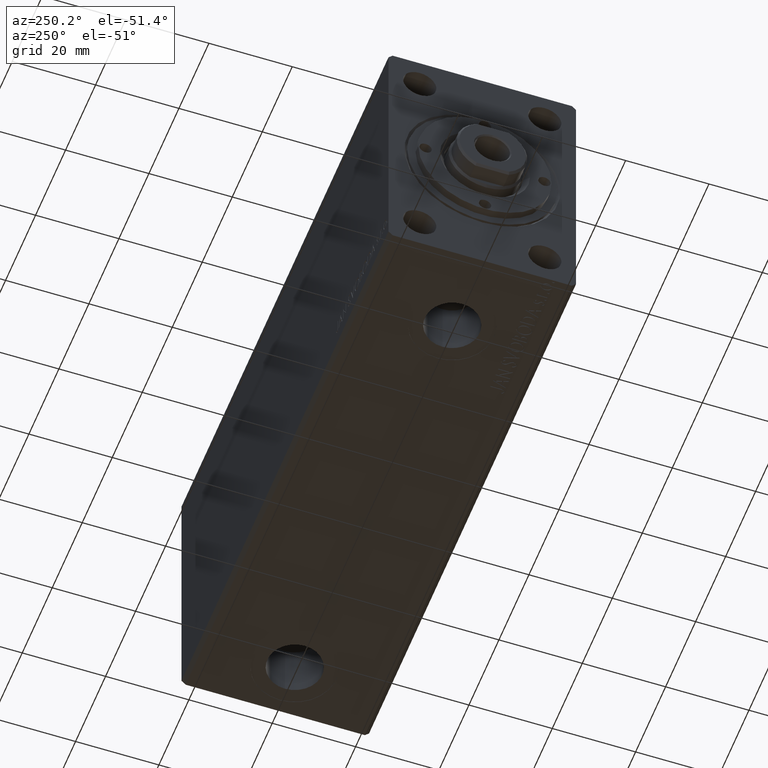
[diagram: clean part render]
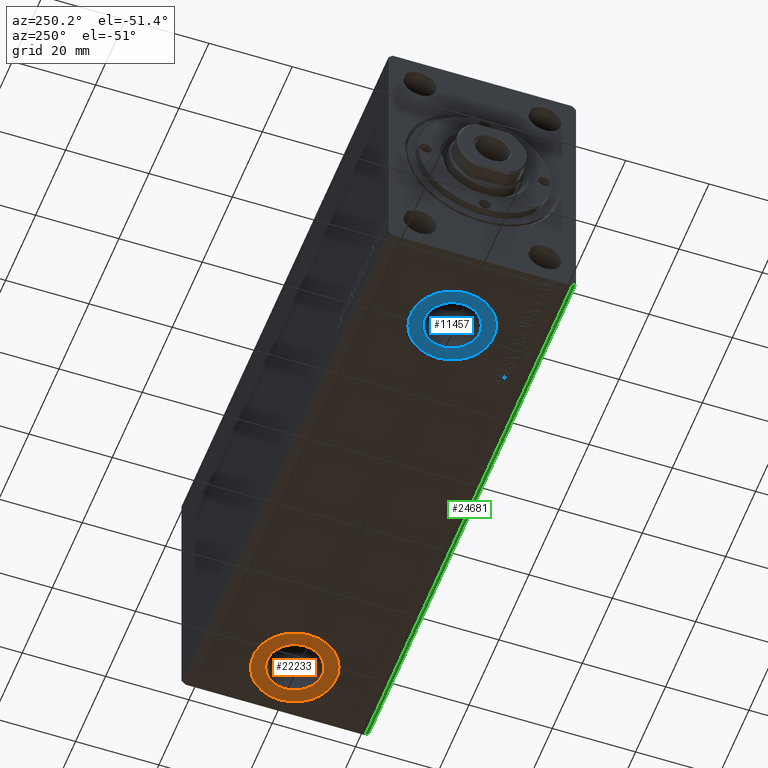
[diagram: same view with three faces highlighted in distinct colors, each labeled with its STEP entity id]
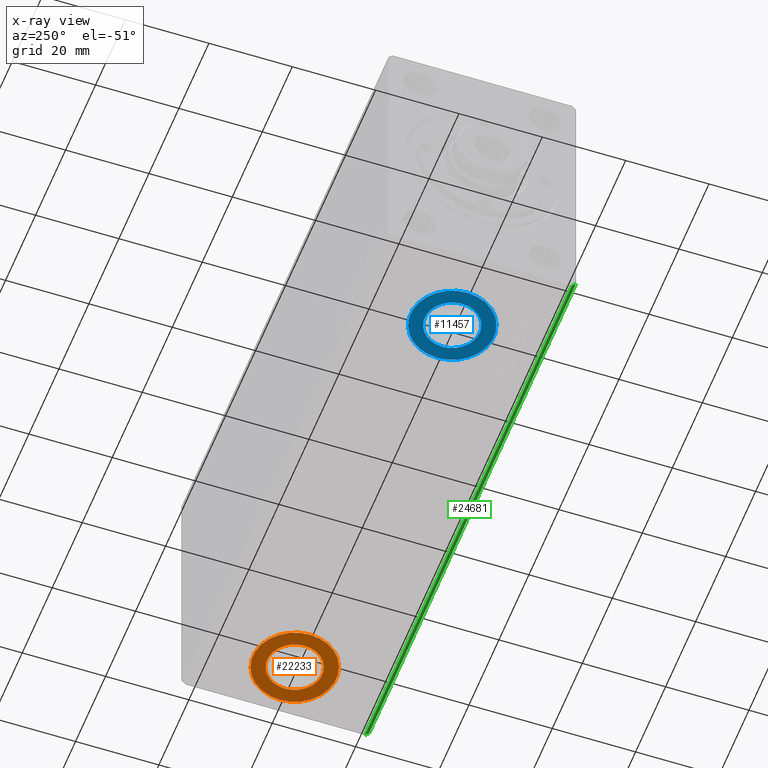
[diagram: x-ray of the same camera — body ghosted, the three highlighted faces saturated]
A machine part, auxiliary view with three faces highlighted in distinct colors.
The next image is the same camera in x-ray (body ghosted, the three faces saturated) — at least one of them is partly hidden behind the body in this view.
Their STEP definitions:

[orange] entity #22233 — the highlighted planar face has unit normal (0, 0, -1).
#4165 = CARTESIAN_POINT ( 'NONE',  ( 135.0000000000000000, -7.408628174318619993E-15, -32.39999999999999858 ) ) ;
#8415 = CARTESIAN_POINT ( 'NONE',  ( 125.0000000000000000, -8.633274973465969897E-15, -32.39999999999999858 ) ) ;
#9365 = AXIS2_PLACEMENT_3D ( 'NONE', #38073, #34275, #17528 ) ;
#13260 = DIRECTION ( 'NONE',  ( -1.000000000000000000, 0.000000000000000000, 0.000000000000000000 ) ) ;
#14771 = AXIS2_PLACEMENT_3D ( 'NONE', #33989, #23492, #13260 ) ;
#14995 = CIRCLE ( 'NONE', #33546, 9.999999999999994671 ) ;
#15484 = EDGE_LOOP ( 'NONE', ( #21932, #23721 ) ) ;
#15537 = DIRECTION ( 'NONE',  ( 0.000000000000000000, 0.000000000000000000, -1.000000000000000000 ) ) ;
#16306 = CARTESIAN_POINT ( 'NONE',  ( 115.0000000000000000, -8.633274973465969897E-15, -32.39999999999999858 ) ) ;
#16378 = VERTEX_POINT ( 'NONE', #40377 ) ;
#17528 = DIRECTION ( 'NONE',  ( -1.000000000000000000, 0.000000000000000000, -0.000000000000000000 ) ) ;
#20258 = EDGE_CURVE ( 'NONE', #41855, #16378, #35489, .T. ) ;
#20889 = FACE_BOUND ( 'NONE', #35262, .T. ) ;
#21424 = EDGE_CURVE ( 'NONE', #27056, #42175, #35524, .T. ) ;
#21932 = ORIENTED_EDGE ( 'NONE', *, *, #25933, .T. ) ;
#22233 = ADVANCED_FACE ( 'NONE', ( #20889, #34498 ), #37843, .T. ) ;
#22244 = DIRECTION ( 'NONE',  ( -1.000000000000000000, 0.000000000000000000, 0.000000000000000000 ) ) ;
#23492 = DIRECTION ( 'NONE',  ( 0.000000000000000000, 0.000000000000000000, -1.000000000000000000 ) ) ;
#23721 = ORIENTED_EDGE ( 'NONE', *, *, #21424, .T. ) ;
#25933 = EDGE_CURVE ( 'NONE', #42175, #27056, #14995, .T. ) ;
#27056 = VERTEX_POINT ( 'NONE', #4165 ) ;
#28025 = ORIENTED_EDGE ( 'NONE', *, *, #20258, .F. ) ;
#28375 = AXIS2_PLACEMENT_3D ( 'NONE', #8415, #28737, #32076 ) ;
#28737 = DIRECTION ( 'NONE',  ( 0.000000000000000000, 0.000000000000000000, -1.000000000000000000 ) ) ;
#29112 = AXIS2_PLACEMENT_3D ( 'NONE', #39831, #30228, #43832 ) ;
#29599 = CARTESIAN_POINT ( 'NONE',  ( 125.0000000000000000, -8.633274973465969897E-15, -32.39999999999999858 ) ) ;
#30228 = DIRECTION ( 'NONE',  ( 0.000000000000000000, 0.000000000000000000, -1.000000000000000000 ) ) ;
#32076 = DIRECTION ( 'NONE',  ( -1.000000000000000000, 0.000000000000000000, 0.000000000000000000 ) ) ;
#33546 = AXIS2_PLACEMENT_3D ( 'NONE', #29599, #15537, #22244 ) ;
#33835 = ORIENTED_EDGE ( 'NONE', *, *, #42809, .F. ) ;
#33989 = CARTESIAN_POINT ( 'NONE',  ( 125.0000000000000000, -8.633274973465969897E-15, -32.39999999999999858 ) ) ;
#34275 = DIRECTION ( 'NONE',  ( 0.000000000000000000, 0.000000000000000000, -1.000000000000000000 ) ) ;
#34498 = FACE_OUTER_BOUND ( 'NONE', #15484, .T. ) ;
#35262 = EDGE_LOOP ( 'NONE', ( #33835, #28025 ) ) ;
#35489 = CIRCLE ( 'NONE', #28375, 6.580000000000002736 ) ;
#35524 = CIRCLE ( 'NONE', #29112, 9.999999999999994671 ) ;
#37843 = PLANE ( 'NONE',  #9365 ) ;
#38073 = CARTESIAN_POINT ( 'NONE',  ( 125.0000000000000000, -8.633274973465969897E-15, -32.39999999999999858 ) ) ;
#38962 = CARTESIAN_POINT ( 'NONE',  ( 131.5800000000000125, -7.827457379627010855E-15, -32.39999999999999858 ) ) ;
#39831 = CARTESIAN_POINT ( 'NONE',  ( 125.0000000000000000, -8.633274973465969897E-15, -32.39999999999999858 ) ) ;
#40377 = CARTESIAN_POINT ( 'NONE',  ( 118.4200000000000017, -8.633274973465969897E-15, -32.39999999999999858 ) ) ;
#41855 = VERTEX_POINT ( 'NONE', #38962 ) ;
#42175 = VERTEX_POINT ( 'NONE', #16306 ) ;
#42809 = EDGE_CURVE ( 'NONE', #16378, #41855, #43254, .T. ) ;
#43254 = CIRCLE ( 'NONE', #14771, 6.580000000000002736 ) ;
#43832 = DIRECTION ( 'NONE',  ( -1.000000000000000000, 0.000000000000000000, 0.000000000000000000 ) ) ;

[blue] entity #11457 — the highlighted planar face has unit normal (0, 0, -1).
#68 = CIRCLE ( 'NONE', #5770, 6.580000000000002736 ) ;
#565 = DIRECTION ( 'NONE',  ( -1.000000000000000000, 0.000000000000000000, 0.000000000000000000 ) ) ;
#1239 = ORIENTED_EDGE ( 'NONE', *, *, #25361, .T. ) ;
#5358 = ORIENTED_EDGE ( 'NONE', *, *, #23256, .T. ) ;
#5770 = AXIS2_PLACEMENT_3D ( 'NONE', #21542, #7706, #31799 ) ;
#6012 = EDGE_CURVE ( 'NONE', #35207, #21081, #6560, .T. ) ;
#6501 = CIRCLE ( 'NONE', #12209, 10.00000000000000000 ) ;
#6560 = CIRCLE ( 'NONE', #29365, 6.580000000000002736 ) ;
#6568 = DIRECTION ( 'NONE',  ( 0.000000000000000000, 0.000000000000000000, -1.000000000000000000 ) ) ;
#7706 = DIRECTION ( 'NONE',  ( 0.000000000000000000, 0.000000000000000000, -1.000000000000000000 ) ) ;
#7860 = CARTESIAN_POINT ( 'NONE',  ( 0.000000000000000000, 0.000000000000000000, -32.39999999999999858 ) ) ;
#10552 = DIRECTION ( 'NONE',  ( 0.000000000000000000, 0.000000000000000000, -1.000000000000000000 ) ) ;
#11457 = ADVANCED_FACE ( 'NONE', ( #20830, #13910 ), #21262, .T. ) ;
#12209 = AXIS2_PLACEMENT_3D ( 'NONE', #16165, #6568, #36478 ) ;
#12758 = CARTESIAN_POINT ( 'NONE',  ( 19.99999999999999645, 2.578758962896938545E-15, -32.39999999999999858 ) ) ;
#13832 = CARTESIAN_POINT ( 'NONE',  ( 26.57999999999999829, 3.384576556735897587E-15, -32.39999999999999858 ) ) ;
#13910 = FACE_OUTER_BOUND ( 'NONE', #18146, .T. ) ;
#15785 = DIRECTION ( 'NONE',  ( 0.000000000000000000, 0.000000000000000000, -1.000000000000000000 ) ) ;
#15851 = CARTESIAN_POINT ( 'NONE',  ( 30.00000000000000000, 3.803405762044290421E-15, -32.39999999999999858 ) ) ;
#16165 = CARTESIAN_POINT ( 'NONE',  ( 19.99999999999999645, 2.578758962896937757E-15, -32.39999999999999858 ) ) ;
#17915 = DIRECTION ( 'NONE',  ( -1.000000000000000000, 0.000000000000000000, -0.000000000000000000 ) ) ;
#18146 = EDGE_LOOP ( 'NONE', ( #1239, #5358 ) ) ;
#19803 = ORIENTED_EDGE ( 'NONE', *, *, #6012, .F. ) ;
#20830 = FACE_BOUND ( 'NONE', #41212, .T. ) ;
#21081 = VERTEX_POINT ( 'NONE', #13832 ) ;
#21262 = PLANE ( 'NONE',  #36961 ) ;
#21542 = CARTESIAN_POINT ( 'NONE',  ( 19.99999999999999645, 2.578758962896938545E-15, -32.39999999999999858 ) ) ;
#23256 = EDGE_CURVE ( 'NONE', #34801, #28747, #6501, .T. ) ;
#25361 = EDGE_CURVE ( 'NONE', #28747, #34801, #42806, .T. ) ;
#26218 = EDGE_CURVE ( 'NONE', #21081, #35207, #68, .T. ) ;
#27595 = ORIENTED_EDGE ( 'NONE', *, *, #26218, .F. ) ;
#28570 = AXIS2_PLACEMENT_3D ( 'NONE', #30924, #37837, #565 ) ;
#28747 = VERTEX_POINT ( 'NONE', #33294 ) ;
#29365 = AXIS2_PLACEMENT_3D ( 'NONE', #12758, #15785, #32980 ) ;
#30924 = CARTESIAN_POINT ( 'NONE',  ( 19.99999999999999645, 2.578758962896937757E-15, -32.39999999999999858 ) ) ;
#31799 = DIRECTION ( 'NONE',  ( -1.000000000000000000, 0.000000000000000000, 0.000000000000000000 ) ) ;
#32980 = DIRECTION ( 'NONE',  ( -1.000000000000000000, 0.000000000000000000, 0.000000000000000000 ) ) ;
#33203 = CARTESIAN_POINT ( 'NONE',  ( 13.41999999999999460, 2.578758962896938545E-15, -32.39999999999999858 ) ) ;
#33294 = CARTESIAN_POINT ( 'NONE',  ( 9.999999999999996447, 2.578758962896937757E-15, -32.39999999999999858 ) ) ;
#34801 = VERTEX_POINT ( 'NONE', #15851 ) ;
#35207 = VERTEX_POINT ( 'NONE', #33203 ) ;
#36478 = DIRECTION ( 'NONE',  ( -1.000000000000000000, 0.000000000000000000, 0.000000000000000000 ) ) ;
#36961 = AXIS2_PLACEMENT_3D ( 'NONE', #7860, #10552, #17915 ) ;
#37837 = DIRECTION ( 'NONE',  ( 0.000000000000000000, 0.000000000000000000, -1.000000000000000000 ) ) ;
#41212 = EDGE_LOOP ( 'NONE', ( #19803, #27595 ) ) ;
#42806 = CIRCLE ( 'NONE', #28570, 10.00000000000000000 ) ;

[green] entity #24681 — the highlighted planar face has unit normal (0, 0.7071, 0.7071).
#239 = LINE ( 'NONE', #41518, #13561 ) ;
#2684 = CARTESIAN_POINT ( 'NONE',  ( 138.0000000000000000, -22.50000000000001421, -31.50000000000000711 ) ) ;
#5532 = EDGE_CURVE ( 'NONE', #22528, #32895, #14833, .T. ) ;
#6243 = PLANE ( 'NONE',  #7244 ) ;
#7244 = AXIS2_PLACEMENT_3D ( 'NONE', #2684, #33032, #32808 ) ;
#7916 = DIRECTION ( 'NONE',  ( 0.000000000000000000, 0.7071067811865451302, -0.7071067811865500152 ) ) ;
#8728 = CARTESIAN_POINT ( 'NONE',  ( 138.0000000000000000, -21.50000000000001776, -32.50000000000000711 ) ) ;
#8942 = DIRECTION ( 'NONE',  ( -1.000000000000000000, -0.000000000000000000, -0.000000000000000000 ) ) ;
#9157 = FACE_OUTER_BOUND ( 'NONE', #25047, .T. ) ;
#9568 = EDGE_CURVE ( 'NONE', #32895, #29209, #36395, .T. ) ;
#12902 = DIRECTION ( 'NONE',  ( -1.000000000000000000, -0.000000000000000000, -0.000000000000000000 ) ) ;
#12953 = ORIENTED_EDGE ( 'NONE', *, *, #41275, .T. ) ;
#13561 = VECTOR ( 'NONE', #24547, 1000.000000000000114 ) ;
#14833 = LINE ( 'NONE', #34707, #28158 ) ;
#19009 = VECTOR ( 'NONE', #12902, 1000.000000000000000 ) ;
#22528 = VERTEX_POINT ( 'NONE', #38881 ) ;
#23903 = ORIENTED_EDGE ( 'NONE', *, *, #9568, .F. ) ;
#24547 = DIRECTION ( 'NONE',  ( 0.000000000000000000, 0.7071067811865451302, -0.7071067811865500152 ) ) ;
#24681 = ADVANCED_FACE ( 'NONE', ( #9157 ), #6243, .F. ) ;
#25047 = EDGE_LOOP ( 'NONE', ( #31471, #23903, #41853, #12953 ) ) ;
#26664 = CARTESIAN_POINT ( 'NONE',  ( 138.0000000000000000, -21.50000000000001776, -32.50000000000000711 ) ) ;
#26750 = EDGE_CURVE ( 'NONE', #28942, #29209, #239, .T. ) ;
#28158 = VECTOR ( 'NONE', #7916, 1000.000000000000114 ) ;
#28942 = VERTEX_POINT ( 'NONE', #41967 ) ;
#29209 = VERTEX_POINT ( 'NONE', #38584 ) ;
#31471 = ORIENTED_EDGE ( 'NONE', *, *, #26750, .T. ) ;
#32808 = DIRECTION ( 'NONE',  ( 0.000000000000000000, -0.7071067811865451302, 0.7071067811865500152 ) ) ;
#32895 = VERTEX_POINT ( 'NONE', #26664 ) ;
#33032 = DIRECTION ( 'NONE',  ( -0.000000000000000000, 0.7071067811865500152, 0.7071067811865451302 ) ) ;
#34707 = CARTESIAN_POINT ( 'NONE',  ( 138.0000000000000000, -22.50000000000001421, -31.50000000000000711 ) ) ;
#36395 = LINE ( 'NONE', #8728, #43701 ) ;
#38584 = CARTESIAN_POINT ( 'NONE',  ( 0.000000000000000000, -21.50000000000001776, -32.50000000000000711 ) ) ;
#38881 = CARTESIAN_POINT ( 'NONE',  ( 138.0000000000000000, -22.50000000000001421, -31.50000000000000711 ) ) ;
#40336 = CARTESIAN_POINT ( 'NONE',  ( 138.0000000000000000, -22.50000000000001421, -31.50000000000000711 ) ) ;
#41275 = EDGE_CURVE ( 'NONE', #22528, #28942, #43460, .T. ) ;
#41518 = CARTESIAN_POINT ( 'NONE',  ( 0.000000000000000000, -22.50000000000001421, -31.50000000000000711 ) ) ;
#41853 = ORIENTED_EDGE ( 'NONE', *, *, #5532, .F. ) ;
#41967 = CARTESIAN_POINT ( 'NONE',  ( 0.000000000000000000, -22.50000000000001421, -31.50000000000000711 ) ) ;
#43460 = LINE ( 'NONE', #40336, #19009 ) ;
#43701 = VECTOR ( 'NONE', #8942, 1000.000000000000000 ) ;